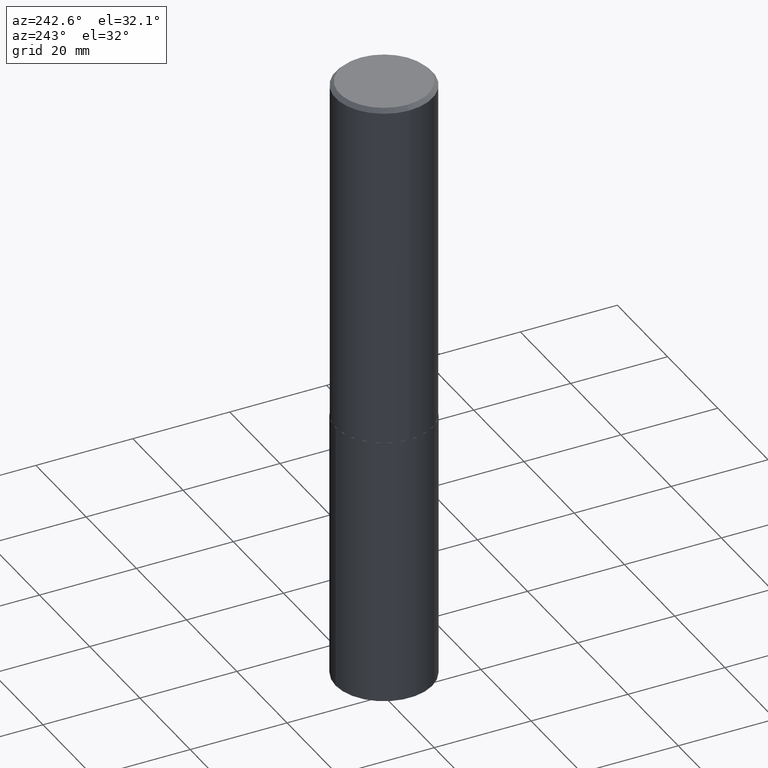
[diagram: clean part render]
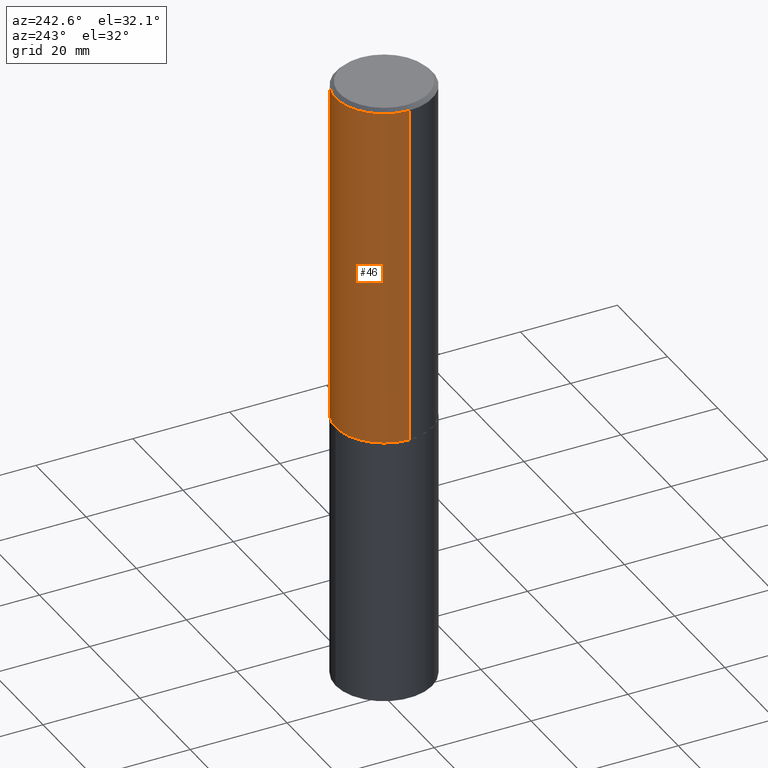
[diagram: same view with one face highlighted and labeled with its STEP entity id]
A machine part, auxiliary view. The second image highlights one B-rep face of the part: STEP entity #46.
In plain terms, the highlighted cylindrical surface (partial cylindrical patch) has radius 10 mm, axis along (-0, 0, 1).
Its self-contained STEP definition (entity closure, byte-faithful):
#10 = EDGE_CURVE ( 'NONE', #165, #47, #164, .T. ) ;
#15 = DIRECTION ( 'NONE',  ( 1.000000000000000000, -6.982962677686265922E-15, 0.000000000000000000 ) ) ;
#40 = CARTESIAN_POINT ( 'NONE',  ( 0.3937000000000000499, -2.858301198043932317E-15, -0.03125000000000014572 ) ) ;
#46 = ADVANCED_FACE ( 'NONE', ( #275 ), #134, .T. ) ;
#47 = VERTEX_POINT ( 'NONE', #40 ) ;
#52 = DIRECTION ( 'NONE',  ( -2.445468806185136597E-29, 3.491481338843145583E-15, 1.000000000000000000 ) ) ;
#53 = CARTESIAN_POINT ( 'NONE',  ( 6.930947690489914621E-29, -9.895556410549243682E-15, -2.834200000000000053 ) ) ;
#57 = EDGE_CURVE ( 'NONE', #47, #187, #85, .T. ) ;
#61 = DIRECTION ( 'NONE',  ( -2.445468806185136597E-29, 3.491481338843145583E-15, 1.000000000000000000 ) ) ;
#76 = VERTEX_POINT ( 'NONE', #139 ) ;
#85 = CIRCLE ( 'NONE', #177, 0.3937000000000000499 ) ;
#105 = CARTESIAN_POINT ( 'NONE',  ( 0.3937000000000004385, -1.264474881675433005E-14, -2.834200000000000053 ) ) ;
#112 = EDGE_CURVE ( 'NONE', #76, #187, #203, .T. ) ;
#117 = AXIS2_PLACEMENT_3D ( 'NONE', #129, #278, #335 ) ;
#129 = CARTESIAN_POINT ( 'NONE',  ( 0.000000000000000000, 0.000000000000000000, 0.000000000000000000 ) ) ;
#134 = CYLINDRICAL_SURFACE ( 'NONE', #117, 0.3937000000000002164 ) ;
#135 = VECTOR ( 'NONE', #366, 39.37007874015748143 ) ;
#139 = CARTESIAN_POINT ( 'NONE',  ( -0.3937000000000004385, -7.098149659861725740E-15, -2.834200000000000053 ) ) ;
#142 = EDGE_LOOP ( 'NONE', ( #376, #188, #309, #382 ) ) ;
#145 = CIRCLE ( 'NONE', #358, 0.3937000000000004385 ) ;
#164 = LINE ( 'NONE', #272, #135 ) ;
#165 = VERTEX_POINT ( 'NONE', #105 ) ;
#177 = AXIS2_PLACEMENT_3D ( 'NONE', #367, #61, #15 ) ;
#187 = VERTEX_POINT ( 'NONE', #227 ) ;
#188 = ORIENTED_EDGE ( 'NONE', *, *, #112, .T. ) ;
#203 = LINE ( 'NONE', #350, #251 ) ;
#227 = CARTESIAN_POINT ( 'NONE',  ( -0.3937000000000000499, -2.204925850506529633E-15, -0.03125000000000014572 ) ) ;
#251 = VECTOR ( 'NONE', #286, 39.37007874015748143 ) ;
#272 = CARTESIAN_POINT ( 'NONE',  ( 0.3937000000000002164, -2.749192406205084794E-15, 1.919750796630861012E-29 ) ) ;
#275 = FACE_OUTER_BOUND ( 'NONE', #142, .T. ) ;
#278 = DIRECTION ( 'NONE',  ( -2.445468806185136597E-29, 3.491481338843145583E-15, 1.000000000000000000 ) ) ;
#283 = EDGE_CURVE ( 'NONE', #165, #76, #145, .T. ) ;
#286 = DIRECTION ( 'NONE',  ( -2.445468806185136877E-29, 3.491481338843145188E-15, 1.000000000000000000 ) ) ;
#309 = ORIENTED_EDGE ( 'NONE', *, *, #57, .F. ) ;
#335 = DIRECTION ( 'NONE',  ( 1.000000000000000000, -6.982962677686266711E-15, 4.876176775795935793E-29 ) ) ;
#350 = CARTESIAN_POINT ( 'NONE',  ( -0.3937000000000002164, 2.797406750687515970E-15, -1.936584745033357576E-29 ) ) ;
#358 = AXIS2_PLACEMENT_3D ( 'NONE', #53, #52, #386 ) ;
#366 = DIRECTION ( 'NONE',  ( -2.445468806185136877E-29, 3.491481338843145188E-15, 1.000000000000000000 ) ) ;
#367 = CARTESIAN_POINT ( 'NONE',  ( 7.642090019328588649E-31, -1.091087918388488171E-16, -0.03125000000000014572 ) ) ;
#376 = ORIENTED_EDGE ( 'NONE', *, *, #283, .T. ) ;
#382 = ORIENTED_EDGE ( 'NONE', *, *, #10, .F. ) ;
#386 = DIRECTION ( 'NONE',  ( 1.000000000000000000, -6.982962677686265922E-15, 0.000000000000000000 ) ) ;